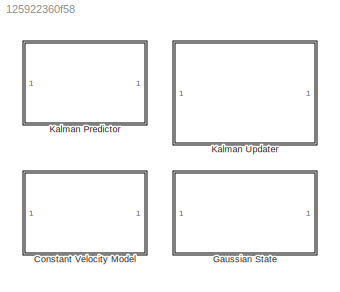
MODEL slx_125922360f58
KIND library
CONFIG AbsTol = auto
CONFIG EnableMultiTasking = off
CONFIG FixedStep = auto
CONFIG MaxStep = auto
CONFIG MinStep = auto
CONFIG RelTol = 1e-3
CONFIG SampleTimeConstraint = Unconstrained
CONFIG SolverName = VariableStepAuto
CONFIG StartTime = 0.0
CONFIG StopTime = 10.0
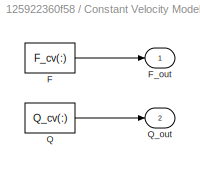
BLOCK [SubSystem] Constant Velocity Model
BLOCK [Constant] Constant Velocity Model/F
  Value = F_cv(:)
BLOCK [Outport] Constant Velocity Model/F_out
BLOCK [Constant] Constant Velocity Model/Q
  Value = Q_cv(:)
BLOCK [Outport] Constant Velocity Model/Q_out
  Port = 2
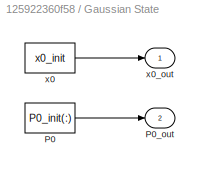
BLOCK [SubSystem] Gaussian State
BLOCK [Constant] Gaussian State/P0
  Value = P0_init(:)
BLOCK [Outport] Gaussian State/P0_out
  Port = 2
BLOCK [Constant] Gaussian State/x0
  Value = x0_init
BLOCK [Outport] Gaussian State/x0_out
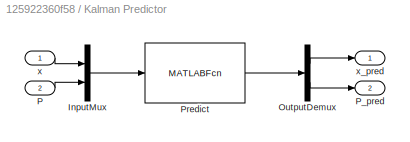
BLOCK [SubSystem] Kalman Predictor
BLOCK [Mux] Kalman Predictor/InputMux
  DisplayOption = bar
  Inputs = 2
BLOCK [Demux] Kalman Predictor/OutputDemux
  Outputs = 2
BLOCK [Inport] Kalman Predictor/P
  Port = 2
BLOCK [Outport] Kalman Predictor/P_pred
  Port = 2
BLOCK [MATLABFcn] Kalman Predictor/Predict
  MATLABFcn = stonesoup_kalman_predict_sfun
BLOCK [Inport] Kalman Predictor/x
BLOCK [Outport] Kalman Predictor/x_pred
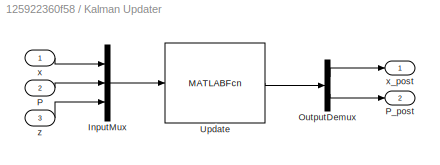
BLOCK [SubSystem] Kalman Updater
BLOCK [Mux] Kalman Updater/InputMux
  DisplayOption = bar
  Inputs = 3
BLOCK [Demux] Kalman Updater/OutputDemux
  Outputs = 2
BLOCK [Inport] Kalman Updater/P
  Port = 2
BLOCK [Outport] Kalman Updater/P_post
  Port = 2
BLOCK [MATLABFcn] Kalman Updater/Update
  MATLABFcn = stonesoup_kalman_update_sfun
BLOCK [Inport] Kalman Updater/x
BLOCK [Outport] Kalman Updater/x_post
BLOCK [Inport] Kalman Updater/z
  Port = 3
LINE Constant Velocity Model/F:1 -> Constant Velocity Model/F_out:1
LINE Constant Velocity Model/Q:1 -> Constant Velocity Model/Q_out:1
LINE Gaussian State/P0:1 -> Gaussian State/P0_out:1
LINE Gaussian State/x0:1 -> Gaussian State/x0_out:1
LINE Kalman Predictor/InputMux:1 -> Kalman Predictor/Predict:1
LINE Kalman Predictor/OutputDemux:1 -> Kalman Predictor/x_pred:1
LINE Kalman Predictor/OutputDemux:2 -> Kalman Predictor/P_pred:1
LINE Kalman Predictor/P:1 -> Kalman Predictor/InputMux:2
LINE Kalman Predictor/Predict:1 -> Kalman Predictor/OutputDemux:1
LINE Kalman Predictor/x:1 -> Kalman Predictor/InputMux:1
LINE Kalman Updater/InputMux:1 -> Kalman Updater/Update:1
LINE Kalman Updater/OutputDemux:1 -> Kalman Updater/x_post:1
LINE Kalman Updater/OutputDemux:2 -> Kalman Updater/P_post:1
LINE Kalman Updater/P:1 -> Kalman Updater/InputMux:2
LINE Kalman Updater/Update:1 -> Kalman Updater/OutputDemux:1
LINE Kalman Updater/x:1 -> Kalman Updater/InputMux:1
LINE Kalman Updater/z:1 -> Kalman Updater/InputMux:3
